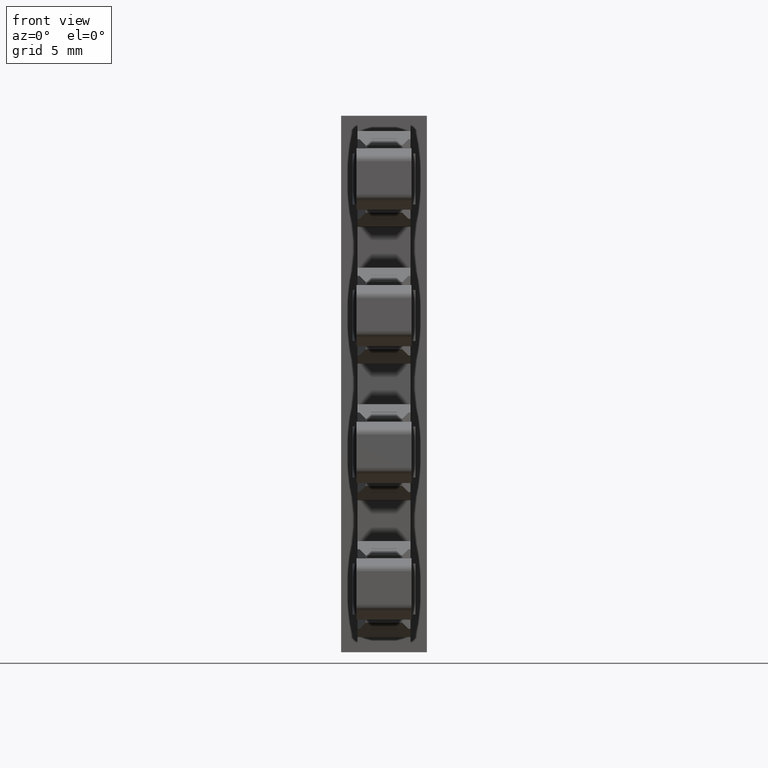
[diagram: clean part render]
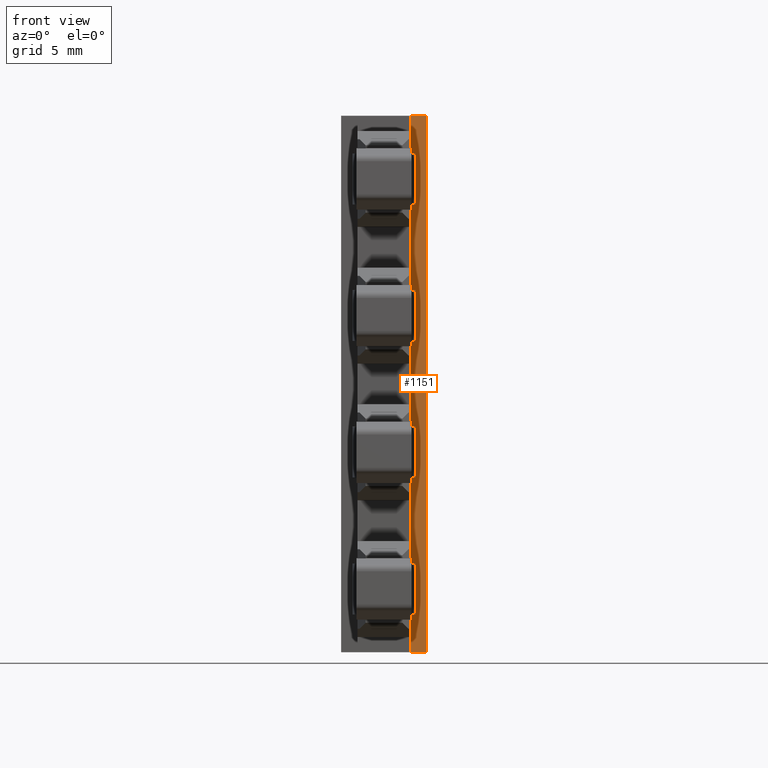
[diagram: same view with one face highlighted and labeled with its STEP entity id]
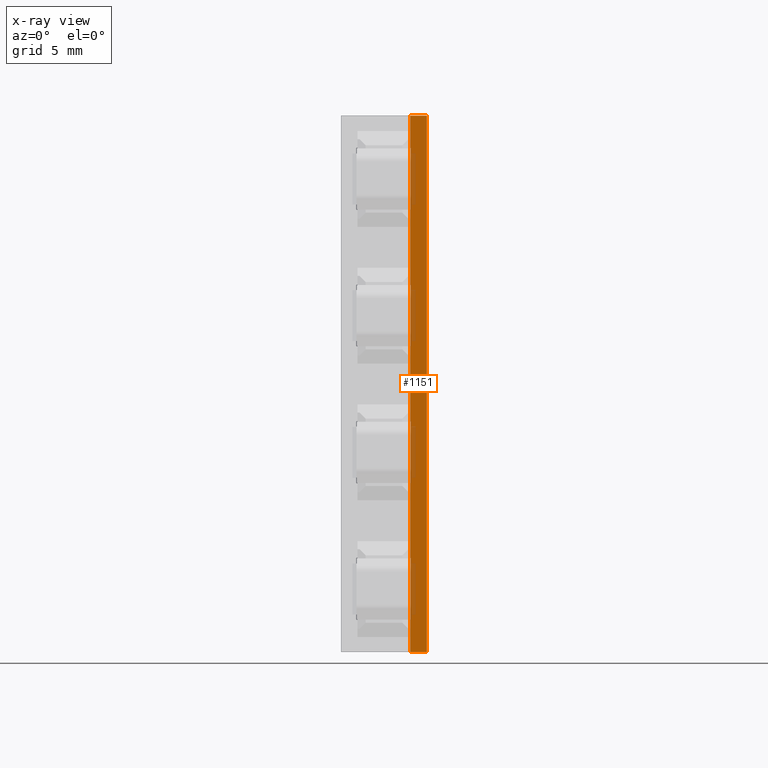
[diagram: x-ray of the same camera — body ghosted, the highlighted face saturated]
A machine part, front view. The second image highlights one B-rep face of the part: STEP entity #1151.
The next image is the same camera in x-ray: the body ghosted, the highlighted face saturated — about 12% of this face is hidden behind the body in this view.
In plain terms, the highlighted planar face has unit normal (0, 1, -0).
Its self-contained STEP definition (entity closure, byte-faithful):
#80 = VECTOR ( 'NONE', #2359, 1000.000000000000000 ) ;
#145 = VECTOR ( 'NONE', #2522, 1000.000000000000000 ) ;
#184 = VECTOR ( 'NONE', #2684, 1000.000000000000000 ) ;
#254 = VECTOR ( 'NONE', #2755, 1000.000000000000200 ) ;
#547 = AXIS2_PLACEMENT_3D ( 'NONE', #4052, #4017, #4005 ) ;
#752 = EDGE_CURVE ( 'NONE', #1633, #1653, #2371, .T. ) ;
#814 = EDGE_CURVE ( 'NONE', #1784, #1743, #2519, .T. ) ;
#859 = EDGE_CURVE ( 'NONE', #1633, #1743, #2683, .T. ) ;
#875 = EDGE_CURVE ( 'NONE', #1653, #1784, #2724, .T. ) ;
#1151 = ADVANCED_FACE ( 'NONE', ( #4006 ), #4015, .F. ) ;
#1633 = VERTEX_POINT ( 'NONE', #4683 ) ;
#1653 = VERTEX_POINT ( 'NONE', #4724 ) ;
#1743 = VERTEX_POINT ( 'NONE', #4806 ) ;
#1784 = VERTEX_POINT ( 'NONE', #4861 ) ;
#1964 = EDGE_LOOP ( 'NONE', ( #2819, #2820, #2821, #2823 ) ) ;
#2359 = DIRECTION ( 'NONE',  ( -4.994244471989924700E-019, -5.266048632863696100E-014, -1.000000000000000000 ) ) ;
#2371 = LINE ( 'NONE', #2396, #80 ) ;
#2396 = CARTESIAN_POINT ( 'NONE',  ( 1394.182427990817400, 1076.657091196431100, -38.31585598421686700 ) ) ;
#2519 = LINE ( 'NONE', #2521, #145 ) ;
#2521 = CARTESIAN_POINT ( 'NONE',  ( 1393.382427990852200, 1076.657098783514800, -50.53084736897823600 ) ) ;
#2522 = DIRECTION ( 'NONE',  ( -1.714375413516005400E-015, 5.266050259226226300E-014, 1.000000000000000000 ) ) ;
#2672 = CARTESIAN_POINT ( 'NONE',  ( 1393.382427990852200, 1076.657098783515500, 9.800000000002386400 ) ) ;
#2683 = LINE ( 'NONE', #2672, #184 ) ;
#2684 = DIRECTION ( 'NONE',  ( -0.9999999999550282000, 9.483855645241478800E-006, -1.714874837315600700E-015 ) ) ;
#2724 = LINE ( 'NONE', #2727, #254 ) ;
#2727 = CARTESIAN_POINT ( 'NONE',  ( 1412.087152898683600, 1076.656921390603400, -16.49999999994238600 ) ) ;
#2755 = DIRECTION ( 'NONE',  ( -0.9999999999550282000, 9.483855577349521400E-006, -1.714874837315600700E-015 ) ) ;
#2819 = ORIENTED_EDGE ( 'NONE', *, *, #859, .T. ) ;
#2820 = ORIENTED_EDGE ( 'NONE', *, *, #814, .F. ) ;
#2821 = ORIENTED_EDGE ( 'NONE', *, *, #875, .F. ) ;
#2823 = ORIENTED_EDGE ( 'NONE', *, *, #752, .F. ) ;
#4005 = DIRECTION ( 'NONE',  ( -0.9999999999550282000, 9.483855577349521400E-006, 0.0000000000000000000 ) ) ;
#4006 = FACE_OUTER_BOUND ( 'NONE', #1964, .T. ) ;
#4015 = PLANE ( 'NONE',  #547 ) ;
#4017 = DIRECTION ( 'NONE',  ( 9.483855577349523100E-006, 0.9999999999550283100, -5.266048633100520300E-014 ) ) ;
#4052 = CARTESIAN_POINT ( 'NONE',  ( 1393.928838836605800, 1076.657093601433900, -38.31585598421686700 ) ) ;
#4683 = CARTESIAN_POINT ( 'NONE',  ( 1394.182427990817400, 1076.657091196431100, 9.800000000002389900 ) ) ;
#4724 = CARTESIAN_POINT ( 'NONE',  ( 1394.182427990817400, 1076.657091196428600, -16.49999999994241400 ) ) ;
#4806 = CARTESIAN_POINT ( 'NONE',  ( 1393.382427990852200, 1076.657098783515500, 9.800000000002386400 ) ) ;
#4861 = CARTESIAN_POINT ( 'NONE',  ( 1393.382427990852000, 1076.657098783513200, -16.49999999994241800 ) ) ;